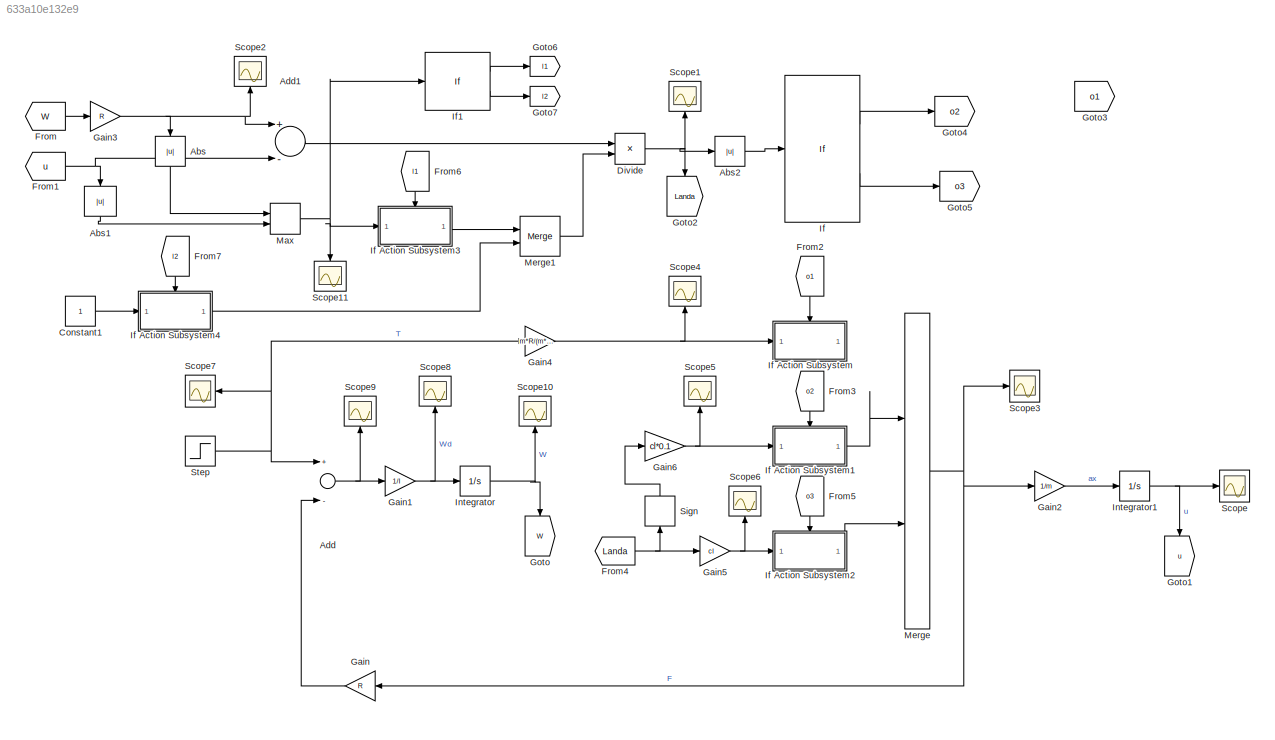
MODEL slx_633a10e132e9
KIND model
CONFIG AbsTol = auto
CONFIG EnableMultiTasking = off
CONFIG FixedStep = auto
CONFIG MaxStep = auto
CONFIG MinStep = auto
CONFIG RelTol = 1e-3
CONFIG SampleTimeConstraint = Unconstrained
CONFIG Solver = VariableStepAuto
CONFIG SolverName = VariableStepAuto
CONFIG StartTime = 0.0
CONFIG StopTime = 10.0
BLOCK [Abs] Abs
  SaturateOnIntegerOverflow = off
BLOCK [Abs] Abs1
  SaturateOnIntegerOverflow = off
BLOCK [Abs] Abs2
  SaturateOnIntegerOverflow = off
BLOCK [Sum] Add
  InputSameDT = off
  Inputs = +-
  OutDataTypeStr = Inherit: Inherit via internal rule
  Ports = [2, 1]
  SaturateOnIntegerOverflow = off
BLOCK [Sum] Add1
  InputSameDT = off
  Inputs = +-
  OutDataTypeStr = Inherit: Inherit via internal rule
  Ports = [2, 1]
  SaturateOnIntegerOverflow = off
BLOCK [Constant] Constant1
BLOCK [Product] Divide
  InputSameDT = off
  Inputs = */
  OutDataTypeStr = Inherit: Inherit via internal rule
  Ports = [2, 1]
  RndMeth = Floor
  SaturateOnIntegerOverflow = off
BLOCK [From] From
  GotoTag = W
BLOCK [From] From1
  GotoTag = u
BLOCK [From] From2
  Commented = on
  GotoTag = o1
BLOCK [From] From3
  GotoTag = o2
BLOCK [From] From4
  GotoTag = Landa
BLOCK [From] From5
  GotoTag = o3
BLOCK [From] From6
  GotoTag = l1
BLOCK [From] From7
  GotoTag = l2
BLOCK [Gain] Gain
  Gain = R
  OutDataTypeStr = Inherit: Inherit via internal rule
  ParamDataTypeStr = Inherit: Inherit via internal rule
  SaturateOnIntegerOverflow = off
BLOCK [Gain] Gain1
  Gain = 1/I
  OutDataTypeStr = Inherit: Inherit via internal rule
  ParamDataTypeStr = Inherit: Inherit via internal rule
  SaturateOnIntegerOverflow = off
BLOCK [Gain] Gain2
  Gain = 1/m
  OutDataTypeStr = Inherit: Inherit via internal rule
  ParamDataTypeStr = Inherit: Inherit via internal rule
  SaturateOnIntegerOverflow = off
BLOCK [Gain] Gain3
  Gain = R
  OutDataTypeStr = Inherit: Inherit via internal rule
  ParamDataTypeStr = Inherit: Inherit via internal rule
  SaturateOnIntegerOverflow = off
BLOCK [Gain] Gain4
  Commented = on
  Gain = m*R/(m*R^2+I)
  OutDataTypeStr = Inherit: Inherit via internal rule
  ParamDataTypeStr = Inherit: Inherit via internal rule
  SaturateOnIntegerOverflow = off
BLOCK [Gain] Gain5
  Gain = cl
  OutDataTypeStr = Inherit: Inherit via internal rule
  ParamDataTypeStr = Inherit: Inherit via internal rule
  SaturateOnIntegerOverflow = off
BLOCK [Gain] Gain6
  Gain = cl*0.1
  OutDataTypeStr = Inherit: Inherit via internal rule
  ParamDataTypeStr = Inherit: Inherit via internal rule
  SaturateOnIntegerOverflow = off
BLOCK [Goto] Goto
  GotoTag = W
BLOCK [Goto] Goto1
  GotoTag = u
BLOCK [Goto] Goto2
  GotoTag = Landa
BLOCK [Goto] Goto3
  Commented = on
  GotoTag = o1
BLOCK [Goto] Goto4
  GotoTag = o2
BLOCK [Goto] Goto5
  GotoTag = o3
BLOCK [Goto] Goto6
  GotoTag = l1
BLOCK [Goto] Goto7
  GotoTag = l2
BLOCK [If] If
  IfExpression = u1>0.1
  Ports = [1, 2]
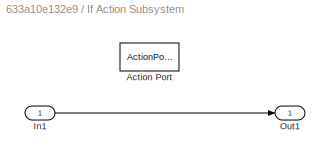
BLOCK [SubSystem] If Action Subsystem
  Commented = on
  Ports = [1, 1, 0, 0, 0, 0, 0, 1]
  RequestExecContextInheritance = off
  TreatAsAtomicUnit = on
BLOCK [ActionPort] If Action Subsystem/Action Port
  ActionPortLabel = if(u1==0)
BLOCK [Inport] If Action Subsystem/In1
  IconDisplay = Port number
BLOCK [Outport] If Action Subsystem/Out1
  IconDisplay = Port number
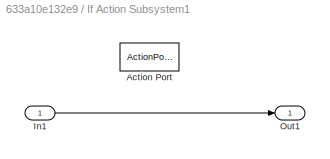
BLOCK [SubSystem] If Action Subsystem1
  Ports = [1, 1, 0, 0, 0, 0, 0, 1]
  RequestExecContextInheritance = off
  TreatAsAtomicUnit = on
BLOCK [ActionPort] If Action Subsystem1/Action Port
  ActionPortLabel = if(u1>0.1)
BLOCK [Inport] If Action Subsystem1/In1
  IconDisplay = Port number
BLOCK [Outport] If Action Subsystem1/Out1
  IconDisplay = Port number
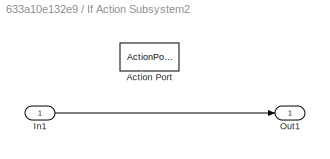
BLOCK [SubSystem] If Action Subsystem2
  Ports = [1, 1, 0, 0, 0, 0, 0, 1]
  RequestExecContextInheritance = off
  TreatAsAtomicUnit = on
BLOCK [ActionPort] If Action Subsystem2/Action Port
  ActionPortLabel = else
BLOCK [Inport] If Action Subsystem2/In1
  IconDisplay = Port number
BLOCK [Outport] If Action Subsystem2/Out1
  IconDisplay = Port number
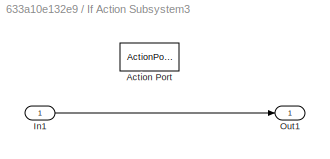
BLOCK [SubSystem] If Action Subsystem3
  Ports = [1, 1, 0, 0, 0, 0, 0, 1]
  RequestExecContextInheritance = off
  TreatAsAtomicUnit = on
BLOCK [ActionPort] If Action Subsystem3/Action Port
  ActionPortLabel = if(u1>1e-9)
BLOCK [Inport] If Action Subsystem3/In1
  IconDisplay = Port number
BLOCK [Outport] If Action Subsystem3/Out1
  IconDisplay = Port number
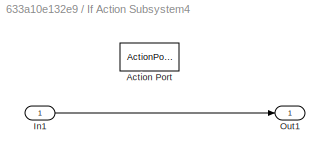
BLOCK [SubSystem] If Action Subsystem4
  Ports = [1, 1, 0, 0, 0, 0, 0, 1]
  RequestExecContextInheritance = off
  TreatAsAtomicUnit = on
BLOCK [ActionPort] If Action Subsystem4/Action Port
  ActionPortLabel = else
BLOCK [Inport] If Action Subsystem4/In1
  IconDisplay = Port number
BLOCK [Outport] If Action Subsystem4/Out1
  IconDisplay = Port number
BLOCK [If] If1
  IfExpression = u1>1e-9
  Ports = [1, 2]
BLOCK [Integrator] Integrator
  InitialCondition = 0.0
  Ports = [1, 1]
BLOCK [Integrator] Integrator1
  Ports = [1, 1]
BLOCK [MinMax] Max
  Function = max
  InputSameDT = off
  Inputs = 2
  Ports = [2, 1]
  SaturateOnIntegerOverflow = off
BLOCK [Merge] Merge
  Ports = [2, 1]
BLOCK [Merge] Merge1
  Ports = [2, 1]
BLOCK [Scope] Scope
  Floating = off
  NumInputPorts = 1
  Ports = [1]
  ScopeSpecificationString = Simulink.scopes.TimeScopeBlockCfg('CurrentConfiguration', extmgr.ConfigurationSet(extmgr.Configuration('Core','General UI',true),extmgr.Configuration('Core','Source UI',true),extmgr.Configuration('Sources','WiredSimulink',true),extmgr.Configuration('Visuals','Time Domain',true,'SerializedDisplays',{struct('MinYLimReal','-0.00000000000005','MaxYLimReal','0.00000000000045','YLabelReal','','MinYLimMa...<+1466ch>
BLOCK [Scope] Scope1
  Floating = off
  NumInputPorts = 1
  Ports = [1]
  ScopeSpecificationString = Simulink.scopes.TimeScopeBlockCfg('CurrentConfiguration', extmgr.ConfigurationSet(extmgr.Configuration('Core','General UI',true),extmgr.Configuration('Core','Source UI',true),extmgr.Configuration('Sources','WiredSimulink',true,'DataLoggingVariableName','ScopeData1'),extmgr.Configuration('Visuals','Time Domain',true,'SerializedDisplays',{struct('MinYLimReal','-0.12495','MaxYLimReal','1.12455','YLab...<+1436ch>
BLOCK [Scope] Scope10
  Floating = off
  NumInputPorts = 1
  Ports = [1]
  ScopeSpecificationString = Simulink.scopes.TimeScopeBlockCfg('CurrentConfiguration', extmgr.ConfigurationSet(extmgr.Configuration('Core','General UI',true),extmgr.Configuration('Core','Source UI',true),extmgr.Configuration('Sources','WiredSimulink',true,'DataLoggingVariableName','ScopeData4'),extmgr.Configuration('Visuals','Time Domain',true,'SerializedDisplays',{struct('MinYLimReal','-30.00014','MaxYLimReal','270.40042','Y...<+1441ch>
BLOCK [Scope] Scope11
  Floating = off
  NumInputPorts = 1
  Ports = [1]
  ScopeSpecificationString = Simulink.scopes.TimeScopeBlockCfg('CurrentConfiguration', extmgr.ConfigurationSet(extmgr.Configuration('Core','General UI',true),extmgr.Configuration('Core','Source UI',true),extmgr.Configuration('Sources','WiredSimulink',true,'DataLoggingVariableName','ScopeData5'),extmgr.Configuration('Visuals','Time Domain',true,'SerializedDisplays',{struct('MinYLimReal','-0.0000000001','MaxYLimReal','0.0000000...<+1474ch>
BLOCK [Scope] Scope2
  Floating = off
  NumInputPorts = 1
  Ports = [1]
  ScopeSpecificationString = Simulink.scopes.TimeScopeBlockCfg('CurrentConfiguration', extmgr.ConfigurationSet(extmgr.Configuration('Core','General UI',true),extmgr.Configuration('Core','Source UI',true),extmgr.Configuration('Sources','WiredSimulink',true,'DataLoggingVariableName','ScopeData2'),extmgr.Configuration('Visuals','Time Domain',true,'SerializedDisplays',{struct('MinYLimReal','-0.0000000001','MaxYLimReal','0.0000000...<+1475ch>
BLOCK [Scope] Scope3
  Floating = off
  NumInputPorts = 1
  Ports = [1]
  ScopeSpecificationString = Simulink.scopes.TimeScopeBlockCfg('CurrentConfiguration', extmgr.ConfigurationSet(extmgr.Configuration('Core','General UI',true),extmgr.Configuration('Core','Source UI',true),extmgr.Configuration('Sources','WiredSimulink',true,'DataLoggingVariableName','ScopeData3'),extmgr.Configuration('Visuals','Time Domain',true,'SerializedDisplays',{struct('MinYLimReal','-1086.3089','MaxYLimReal','5676.25654',...<+1451ch>
BLOCK [Scope] Scope4
  Commented = on
  Floating = off
  NumInputPorts = 1
  Ports = [1]
  ScopeSpecificationString = Simulink.scopes.TimeScopeBlockCfg('CurrentConfiguration', extmgr.ConfigurationSet(extmgr.Configuration('Core','General UI',true),extmgr.Configuration('Core','Source UI',true),extmgr.Configuration('Sources','WiredSimulink',true,'DataLoggingVariableName','ScopeData4'),extmgr.Configuration('Visuals','Time Domain',true,'SerializedDisplays',{struct('MinYLimReal','-164.14411','MaxYLimReal','1477.29695',...<+1436ch>
BLOCK [Scope] Scope5
  Floating = off
  NumInputPorts = 1
  Ports = [1]
  ScopeSpecificationString = Simulink.scopes.TimeScopeBlockCfg('CurrentConfiguration', extmgr.ConfigurationSet(extmgr.Configuration('Core','General UI',true),extmgr.Configuration('Core','Source UI',true),extmgr.Configuration('Sources','WiredSimulink',true,'DataLoggingVariableName','ScopeData5'),extmgr.Configuration('Visuals','Time Domain',true,'SerializedDisplays',{struct('MinYLimReal','-625.00000','MaxYLimReal','5625.00000',...<+1434ch>
BLOCK [Scope] Scope6
  Floating = off
  NumInputPorts = 1
  Ports = [1]
  ScopeSpecificationString = Simulink.scopes.TimeScopeBlockCfg('CurrentConfiguration', extmgr.ConfigurationSet(extmgr.Configuration('Core','General UI',true),extmgr.Configuration('Core','Source UI',true),extmgr.Configuration('Sources','WiredSimulink',true,'DataLoggingVariableName','ScopeData6'),extmgr.Configuration('Visuals','Time Domain',true,'SerializedDisplays',{struct('MinYLimReal','-6247.49915','MaxYLimReal','56227.49235...<+1443ch>
BLOCK [Scope] Scope7
  Floating = off
  NumInputPorts = 1
  Ports = [1]
  ScopeSpecificationString = Simulink.scopes.TimeScopeBlockCfg('CurrentConfiguration', extmgr.ConfigurationSet(extmgr.Configuration('Core','General UI',true),extmgr.Configuration('Core','Source UI',true),extmgr.Configuration('Sources','WiredSimulink',true,'DataLoggingVariableName','ScopeData1'),extmgr.Configuration('Visuals','Time Domain',true,'SerializedDisplays',{struct('MinYLimReal','90.00000','MaxYLimReal','110.00000','YL...<+1421ch>
BLOCK [Scope] Scope8
  Floating = off
  NumInputPorts = 1
  Ports = [1]
  ScopeSpecificationString = Simulink.scopes.TimeScopeBlockCfg('CurrentConfiguration', extmgr.ConfigurationSet(extmgr.Configuration('Core','General UI',true),extmgr.Configuration('Core','Source UI',true),extmgr.Configuration('Sources','WiredSimulink',true,'DataLoggingVariableName','ScopeData2'),extmgr.Configuration('Visuals','Time Domain',true,'SerializedDisplays',{struct('MinYLimReal','-1133.33333','MaxYLimReal','200.00000',...<+1435ch>
BLOCK [Scope] Scope9
  Floating = off
  NumInputPorts = 1
  Ports = [1]
  ScopeSpecificationString = Simulink.scopes.TimeScopeBlockCfg('CurrentConfiguration', extmgr.ConfigurationSet(extmgr.Configuration('Core','General UI',true),extmgr.Configuration('Core','Source UI',true),extmgr.Configuration('Sources','WiredSimulink',true,'DataLoggingVariableName','ScopeData3'),extmgr.Configuration('Visuals','Time Domain',true,'SerializedDisplays',{struct('MinYLimReal','-1812.5','MaxYLimReal','312.5','YLabelR...<+1429ch>
BLOCK [Signum] Sign
BLOCK [Step] Step
  After = 100
  SampleTime = 0
  Time = 0
LINE Abs1:1 -> Max:2
LINE Abs2:1 -> If:1
LINE Abs:1 -> Max:1
LINE Add1:1 -> Divide:1
NET Add:1 -> Gain1:1, Scope9:1
LINE Constant1:1 -> If Action Subsystem4:1
NET Divide:1 -> Abs2:1, Goto2:1, Scope1:1
NET From1:1 -> Abs1:1, Add1:2
LINE From2:1 -> If Action Subsystem:ifaction
LINE From3:1 -> If Action Subsystem1:ifaction
NET From4:1 -> Gain5:1, Sign:1
LINE From5:1 -> If Action Subsystem2:ifaction
LINE From6:1 -> If Action Subsystem3:ifaction
LINE From7:1 -> If Action Subsystem4:ifaction
LINE From:1 -> Gain3:1
NET Gain1:1 -> Integrator:1, Scope8:1
LINE Gain2:1 -> Integrator1:1
NET Gain3:1 -> Abs:1, Add1:1, Scope2:1
NET Gain4:1 -> If Action Subsystem:1, Scope4:1
NET Gain5:1 -> If Action Subsystem2:1, Scope6:1
NET Gain6:1 -> If Action Subsystem1:1, Scope5:1
LINE Gain:1 -> Add:2
LINE If Action Subsystem/In1:1 -> If Action Subsystem/Out1:1
LINE If Action Subsystem1/In1:1 -> If Action Subsystem1/Out1:1
LINE If Action Subsystem1:1 -> Merge:1
LINE If Action Subsystem2/In1:1 -> If Action Subsystem2/Out1:1
LINE If Action Subsystem2:1 -> Merge:2
LINE If Action Subsystem3/In1:1 -> If Action Subsystem3/Out1:1
LINE If Action Subsystem3:1 -> Merge1:1
LINE If Action Subsystem4/In1:1 -> If Action Subsystem4/Out1:1
LINE If Action Subsystem4:1 -> Merge1:2
LINE If1:1 -> Goto6:1
LINE If1:2 -> Goto7:1
LINE If:1 -> Goto4:1
LINE If:2 -> Goto5:1
NET Integrator1:1 -> Goto1:1, Scope:1
NET Integrator:1 -> Goto:1, Scope10:1
NET Max:1 -> If Action Subsystem3:1, If1:1, Scope11:1
LINE Merge1:1 -> Divide:2
NET Merge:1 -> Gain2:1, Gain:1, Scope3:1
LINE Sign:1 -> Gain6:1
NET Step:1 -> Add:1, Gain4:1, Scope7:1
note: NET lines group one-source signal fan-out (src -> all destinations, sorted); 1:1 wires keep LINE
